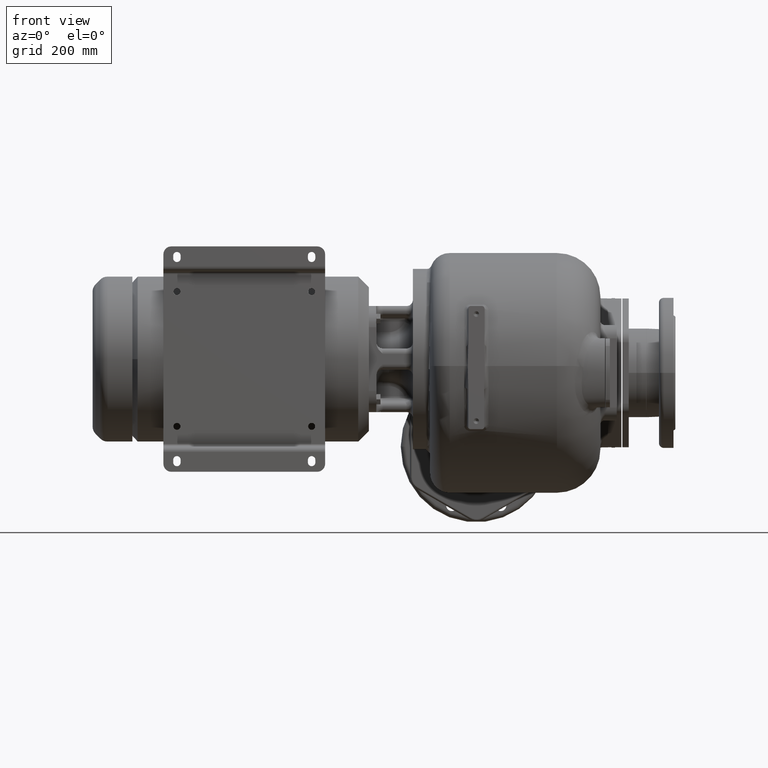
[diagram: clean part render]
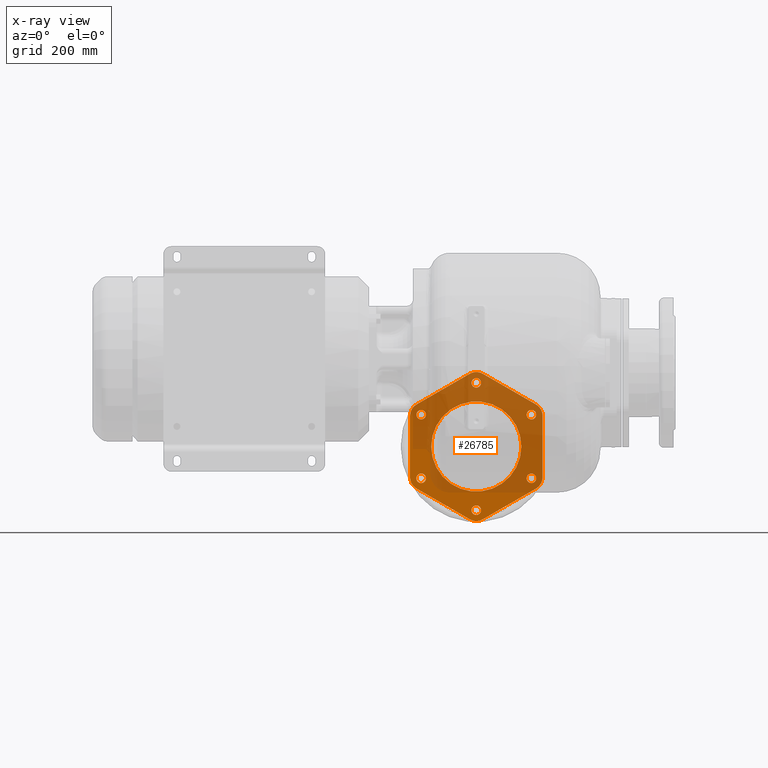
[diagram: x-ray — body ghosted, one internal face saturated and labeled with its STEP entity id]
A machine part, front view, then the same camera in x-ray: the body is ghosted and one INTERNAL B-rep face — a face not visible from any outside direction — is saturated and labeled: STEP entity #26785.
In plain terms, the highlighted planar face has unit normal (0, 1, 0).
Its self-contained STEP definition (entity closure, byte-faithful):
#26180=CARTESIAN_POINT('',(1.E2,5.52E2,-1.072649730810E2));
#26181=DIRECTION('',(0.E0,-1.E0,0.E0));
#26182=DIRECTION('',(1.E0,0.E0,0.E0));
#26183=AXIS2_PLACEMENT_3D('',#26180,#26181,#26182);
#26185=DIRECTION('',(0.E0,0.E0,1.E0));
#26186=VECTOR('',#26185,1.154700538379E2);
#26187=CARTESIAN_POINT('',(1.25E2,5.52E2,-2.227350269190E2));
#26188=LINE('',#26187,#26186);
#26189=CARTESIAN_POINT('',(1.E2,5.52E2,-2.227350269190E2));
#26190=DIRECTION('',(0.E0,-1.E0,0.E0));
#26191=DIRECTION('',(5.E-1,0.E0,-8.660254037844E-1));
#26192=AXIS2_PLACEMENT_3D('',#26189,#26190,#26191);
#26194=DIRECTION('',(8.660254037844E-1,0.E0,5.E-1));
#26195=VECTOR('',#26194,1.154700538379E2);
#26196=CARTESIAN_POINT('',(1.25E1,5.52E2,-3.021206889325E2));
#26197=LINE('',#26196,#26195);
#26198=CARTESIAN_POINT('',(-1.668280801894E-14,5.52E2,-2.804700538379E2));
#26199=DIRECTION('',(0.E0,-1.E0,0.E0));
#26200=DIRECTION('',(-5.E-1,0.E0,-8.660254037844E-1));
#26201=AXIS2_PLACEMENT_3D('',#26198,#26199,#26200);
#26203=DIRECTION('',(8.660254037844E-1,0.E0,-5.E-1));
#26204=VECTOR('',#26203,1.154700538379E2);
#26205=CARTESIAN_POINT('',(-1.125E2,5.52E2,-2.443856620136E2));
#26206=LINE('',#26205,#26204);
#26207=CARTESIAN_POINT('',(-1.E2,5.52E2,-2.227350269190E2));
#26208=DIRECTION('',(0.E0,-1.E0,0.E0));
#26209=DIRECTION('',(-1.E0,0.E0,0.E0));
#26210=AXIS2_PLACEMENT_3D('',#26207,#26208,#26209);
#26212=DIRECTION('',(0.E0,0.E0,-1.E0));
#26213=VECTOR('',#26212,1.154700538379E2);
#26214=CARTESIAN_POINT('',(-1.25E2,5.52E2,-1.072649730810E2));
#26215=LINE('',#26214,#26213);
#26216=CARTESIAN_POINT('',(-1.E2,5.52E2,-1.072649730810E2));
#26217=DIRECTION('',(0.E0,-1.E0,0.E0));
#26218=DIRECTION('',(-5.E-1,0.E0,8.660254037844E-1));
#26219=AXIS2_PLACEMENT_3D('',#26216,#26217,#26218);
#26221=DIRECTION('',(-8.660254037844E-1,0.E0,-5.E-1));
#26222=VECTOR('',#26221,1.154700538379E2);
#26223=CARTESIAN_POINT('',(-1.25E1,5.52E2,-2.787931106746E1));
#26224=LINE('',#26223,#26222);
#26225=CARTESIAN_POINT('',(1.055959402332E-14,5.52E2,-4.952994616208E1));
#26226=DIRECTION('',(0.E0,-1.E0,0.E0));
#26227=DIRECTION('',(5.E-1,0.E0,8.660254037844E-1));
#26228=AXIS2_PLACEMENT_3D('',#26225,#26226,#26227);
#26230=DIRECTION('',(-8.660254037844E-1,0.E0,5.E-1));
#26231=VECTOR('',#26230,1.154700538379E2);
#26232=CARTESIAN_POINT('',(1.125E2,5.52E2,-8.561433798643E1));
#26233=LINE('',#26232,#26231);
#26234=CARTESIAN_POINT('',(-1.039230484541E2,5.52E2,-2.25E2));
#26235=DIRECTION('',(0.E0,1.E0,0.E0));
#26236=DIRECTION('',(0.E0,0.E0,1.E0));
#26237=AXIS2_PLACEMENT_3D('',#26234,#26235,#26236);
#26239=CARTESIAN_POINT('',(-1.039230484541E2,5.52E2,-2.25E2));
#26240=DIRECTION('',(0.E0,1.E0,0.E0));
#26241=DIRECTION('',(0.E0,0.E0,-1.E0));
#26242=AXIS2_PLACEMENT_3D('',#26239,#26240,#26241);
#26244=CARTESIAN_POINT('',(-3.148331336660E-14,5.52E2,-2.85E2));
#26245=DIRECTION('',(0.E0,1.E0,0.E0));
#26246=DIRECTION('',(-8.660254037844E-1,0.E0,5.E-1));
#26247=AXIS2_PLACEMENT_3D('',#26244,#26245,#26246);
#26249=CARTESIAN_POINT('',(-3.148331336660E-14,5.52E2,-2.85E2));
#26250=DIRECTION('',(0.E0,1.E0,0.E0));
#26251=DIRECTION('',(8.660254037844E-1,0.E0,-5.E-1));
#26252=AXIS2_PLACEMENT_3D('',#26249,#26250,#26251);
#26254=CARTESIAN_POINT('',(1.039230484541E2,5.52E2,-2.25E2));
#26255=DIRECTION('',(0.E0,1.E0,0.E0));
#26256=DIRECTION('',(-8.660254037844E-1,0.E0,-5.E-1));
#26257=AXIS2_PLACEMENT_3D('',#26254,#26255,#26256);
#26259=CARTESIAN_POINT('',(1.039230484541E2,5.52E2,-2.25E2));
#26260=DIRECTION('',(0.E0,1.E0,0.E0));
#26261=DIRECTION('',(8.660254037844E-1,0.E0,5.E-1));
#26262=AXIS2_PLACEMENT_3D('',#26259,#26260,#26261);
#26264=CARTESIAN_POINT('',(1.039230484541E2,5.52E2,-1.05E2));
#26265=DIRECTION('',(0.E0,1.E0,0.E0));
#26266=DIRECTION('',(0.E0,0.E0,-1.E0));
#26267=AXIS2_PLACEMENT_3D('',#26264,#26265,#26266);
#26269=CARTESIAN_POINT('',(1.039230484541E2,5.52E2,-1.05E2));
#26270=DIRECTION('',(0.E0,1.E0,0.E0));
#26271=DIRECTION('',(0.E0,0.E0,1.E0));
#26272=AXIS2_PLACEMENT_3D('',#26269,#26270,#26271);
#26274=CARTESIAN_POINT('',(6.799267576305E-14,5.52E2,-4.5E1));
#26275=DIRECTION('',(0.E0,1.E0,0.E0));
#26276=DIRECTION('',(8.660254037844E-1,0.E0,-5.E-1));
#26277=AXIS2_PLACEMENT_3D('',#26274,#26275,#26276);
#26279=CARTESIAN_POINT('',(6.799267576305E-14,5.52E2,-4.5E1));
#26280=DIRECTION('',(0.E0,1.E0,0.E0));
#26281=DIRECTION('',(-8.660254037844E-1,0.E0,5.E-1));
#26282=AXIS2_PLACEMENT_3D('',#26279,#26280,#26281);
#26284=CARTESIAN_POINT('',(-1.039230484541E2,5.52E2,-1.05E2));
#26285=DIRECTION('',(0.E0,1.E0,0.E0));
#26286=DIRECTION('',(8.660254037844E-1,0.E0,5.E-1));
#26287=AXIS2_PLACEMENT_3D('',#26284,#26285,#26286);
#26289=CARTESIAN_POINT('',(-1.039230484541E2,5.52E2,-1.05E2));
#26290=DIRECTION('',(0.E0,1.E0,0.E0));
#26291=DIRECTION('',(-8.660254037844E-1,0.E0,-5.E-1));
#26292=AXIS2_PLACEMENT_3D('',#26289,#26290,#26291);
#26294=CARTESIAN_POINT('',(0.E0,5.52E2,-1.65E2));
#26295=DIRECTION('',(0.E0,-1.E0,0.E0));
#26296=DIRECTION('',(1.E0,0.E0,0.E0));
#26297=AXIS2_PLACEMENT_3D('',#26294,#26295,#26296);
#26299=CARTESIAN_POINT('',(0.E0,5.52E2,-1.65E2));
#26300=DIRECTION('',(0.E0,-1.E0,0.E0));
#26301=DIRECTION('',(-1.E0,0.E0,0.E0));
#26302=AXIS2_PLACEMENT_3D('',#26299,#26300,#26301);
#26356=CARTESIAN_POINT('',(1.25E2,5.52E2,-1.072649730810E2));
#26357=VERTEX_POINT('',#26356);
#26358=CARTESIAN_POINT('',(1.125E2,5.52E2,-8.561433798643E1));
#26359=VERTEX_POINT('',#26358);
#26364=CARTESIAN_POINT('',(1.25E1,5.52E2,-2.787931106746E1));
#26365=VERTEX_POINT('',#26364);
#26366=CARTESIAN_POINT('',(-1.25E1,5.52E2,-2.787931106746E1));
#26367=VERTEX_POINT('',#26366);
#26372=CARTESIAN_POINT('',(-1.125E2,5.52E2,-8.561433798643E1));
#26373=VERTEX_POINT('',#26372);
#26374=CARTESIAN_POINT('',(-1.25E2,5.52E2,-1.072649730810E2));
#26375=VERTEX_POINT('',#26374);
#26380=CARTESIAN_POINT('',(-1.25E2,5.52E2,-2.227350269190E2));
#26381=VERTEX_POINT('',#26380);
#26382=CARTESIAN_POINT('',(-1.125E2,5.52E2,-2.443856620136E2));
#26383=VERTEX_POINT('',#26382);
#26388=CARTESIAN_POINT('',(-1.25E1,5.52E2,-3.021206889325E2));
#26389=VERTEX_POINT('',#26388);
#26390=CARTESIAN_POINT('',(1.25E1,5.52E2,-3.021206889325E2));
#26391=VERTEX_POINT('',#26390);
#26396=CARTESIAN_POINT('',(1.125E2,5.52E2,-2.443856620136E2));
#26397=VERTEX_POINT('',#26396);
#26398=CARTESIAN_POINT('',(1.25E2,5.52E2,-2.227350269190E2));
#26399=VERTEX_POINT('',#26398);
#26400=CARTESIAN_POINT('',(-1.039230484541E2,5.52E2,-2.16E2));
#26402=VERTEX_POINT('',#26400);
#26404=CARTESIAN_POINT('',(-1.039230484541E2,5.52E2,-2.34E2));
#26406=VERTEX_POINT('',#26404);
#26408=CARTESIAN_POINT('',(-7.794228634060E0,5.52E2,-2.805E2));
#26410=VERTEX_POINT('',#26408);
#26412=CARTESIAN_POINT('',(7.794228634060E0,5.52E2,-2.895E2));
#26414=VERTEX_POINT('',#26412);
#26416=CARTESIAN_POINT('',(9.612881982007E1,5.52E2,-2.295E2));
#26418=VERTEX_POINT('',#26416);
#26420=CARTESIAN_POINT('',(1.117172770882E2,5.52E2,-2.205E2));
#26422=VERTEX_POINT('',#26420);
#26424=CARTESIAN_POINT('',(1.039230484541E2,5.52E2,-1.14E2));
#26426=VERTEX_POINT('',#26424);
#26428=CARTESIAN_POINT('',(1.039230484541E2,5.52E2,-9.6E1));
#26430=VERTEX_POINT('',#26428);
#26432=CARTESIAN_POINT('',(7.794228634060E0,5.52E2,-4.95E1));
#26434=VERTEX_POINT('',#26432);
#26436=CARTESIAN_POINT('',(-7.794228634060E0,5.52E2,-4.05E1));
#26438=VERTEX_POINT('',#26436);
#26440=CARTESIAN_POINT('',(-9.612881982007E1,5.52E2,-1.005E2));
#26442=VERTEX_POINT('',#26440);
#26444=CARTESIAN_POINT('',(-1.117172770882E2,5.52E2,-1.095E2));
#26446=VERTEX_POINT('',#26444);
#26448=CARTESIAN_POINT('',(8.5E1,5.52E2,-1.65E2));
#26449=CARTESIAN_POINT('',(-8.5E1,5.52E2,-1.65E2));
#26450=VERTEX_POINT('',#26448);
#26451=VERTEX_POINT('',#26449);
#26726=CARTESIAN_POINT('',(0.E0,5.52E2,-1.65E2));
#26727=DIRECTION('',(0.E0,1.E0,0.E0));
#26728=DIRECTION('',(0.E0,0.E0,-1.E0));
#26729=AXIS2_PLACEMENT_3D('',#26726,#26727,#26728);
#26730=PLANE('',#26729);
#26731=ORIENTED_EDGE('',*,*,#26566,.F.);
#26732=ORIENTED_EDGE('',*,*,#26582,.F.);
#26733=ORIENTED_EDGE('',*,*,#26595,.F.);
#26734=ORIENTED_EDGE('',*,*,#26608,.F.);
#26735=ORIENTED_EDGE('',*,*,#26623,.F.);
#26736=ORIENTED_EDGE('',*,*,#26636,.F.);
#26737=ORIENTED_EDGE('',*,*,#26651,.F.);
#26738=ORIENTED_EDGE('',*,*,#26664,.F.);
#26739=ORIENTED_EDGE('',*,*,#26679,.F.);
#26740=ORIENTED_EDGE('',*,*,#26692,.F.);
#26741=ORIENTED_EDGE('',*,*,#26707,.F.);
#26742=ORIENTED_EDGE('',*,*,#26719,.F.);
#26743=EDGE_LOOP('',(#26731,#26732,#26733,#26734,#26735,#26736,#26737,#26738,
#26739,#26740,#26741,#26742));
#26744=FACE_OUTER_BOUND('',#26743,.F.);
#26745=ORIENTED_EDGE('',*,*,#26463,.F.);
#26746=ORIENTED_EDGE('',*,*,#26481,.F.);
#26747=EDGE_LOOP('',(#26745,#26746));
#26748=FACE_BOUND('',#26747,.F.);
#26750=ORIENTED_EDGE('',*,*,#26749,.F.);
#26752=ORIENTED_EDGE('',*,*,#26751,.F.);
#26753=EDGE_LOOP('',(#26750,#26752));
#26754=FACE_BOUND('',#26753,.F.);
#26756=ORIENTED_EDGE('',*,*,#26755,.F.);
#26758=ORIENTED_EDGE('',*,*,#26757,.F.);
#26759=EDGE_LOOP('',(#26756,#26758));
#26760=FACE_BOUND('',#26759,.F.);
#26762=ORIENTED_EDGE('',*,*,#26761,.F.);
#26764=ORIENTED_EDGE('',*,*,#26763,.F.);
#26765=EDGE_LOOP('',(#26762,#26764));
#26766=FACE_BOUND('',#26765,.F.);
#26768=ORIENTED_EDGE('',*,*,#26767,.F.);
#26770=ORIENTED_EDGE('',*,*,#26769,.F.);
#26771=EDGE_LOOP('',(#26768,#26770));
#26772=FACE_BOUND('',#26771,.F.);
#26774=ORIENTED_EDGE('',*,*,#26773,.F.);
#26776=ORIENTED_EDGE('',*,*,#26775,.F.);
#26777=EDGE_LOOP('',(#26774,#26776));
#26778=FACE_BOUND('',#26777,.F.);
#26780=ORIENTED_EDGE('',*,*,#26779,.T.);
#26782=ORIENTED_EDGE('',*,*,#26781,.T.);
#26783=EDGE_LOOP('',(#26780,#26782));
#26784=FACE_BOUND('',#26783,.F.);
#26785=ADVANCED_FACE('',(#26744,#26748,#26754,#26760,#26766,#26772,#26778,
#26784),#26730,.F.);
#26184=CIRCLE('',#26183,2.5E1);
#26193=CIRCLE('',#26192,2.5E1);
#26202=CIRCLE('',#26201,2.5E1);
#26211=CIRCLE('',#26210,2.5E1);
#26220=CIRCLE('',#26219,2.5E1);
#26229=CIRCLE('',#26228,2.5E1);
#26238=CIRCLE('',#26237,9.E0);
#26243=CIRCLE('',#26242,9.E0);
#26248=CIRCLE('',#26247,9.E0);
#26253=CIRCLE('',#26252,9.E0);
#26258=CIRCLE('',#26257,9.E0);
#26263=CIRCLE('',#26262,9.E0);
#26268=CIRCLE('',#26267,9.E0);
#26273=CIRCLE('',#26272,9.E0);
#26278=CIRCLE('',#26277,9.E0);
#26283=CIRCLE('',#26282,9.E0);
#26288=CIRCLE('',#26287,9.E0);
#26293=CIRCLE('',#26292,9.E0);
#26298=CIRCLE('',#26297,8.5E1);
#26303=CIRCLE('',#26302,8.5E1);
#26463=EDGE_CURVE('',#26402,#26406,#26238,.T.);
#26481=EDGE_CURVE('',#26406,#26402,#26243,.T.);
#26566=EDGE_CURVE('',#26357,#26359,#26184,.T.);
#26582=EDGE_CURVE('',#26399,#26357,#26188,.T.);
#26595=EDGE_CURVE('',#26397,#26399,#26193,.T.);
#26608=EDGE_CURVE('',#26391,#26397,#26197,.T.);
#26623=EDGE_CURVE('',#26389,#26391,#26202,.T.);
#26636=EDGE_CURVE('',#26383,#26389,#26206,.T.);
#26651=EDGE_CURVE('',#26381,#26383,#26211,.T.);
#26664=EDGE_CURVE('',#26375,#26381,#26215,.T.);
#26679=EDGE_CURVE('',#26373,#26375,#26220,.T.);
#26692=EDGE_CURVE('',#26367,#26373,#26224,.T.);
#26707=EDGE_CURVE('',#26365,#26367,#26229,.T.);
#26719=EDGE_CURVE('',#26359,#26365,#26233,.T.);
#26749=EDGE_CURVE('',#26410,#26414,#26248,.T.);
#26751=EDGE_CURVE('',#26414,#26410,#26253,.T.);
#26755=EDGE_CURVE('',#26418,#26422,#26258,.T.);
#26757=EDGE_CURVE('',#26422,#26418,#26263,.T.);
#26761=EDGE_CURVE('',#26426,#26430,#26268,.T.);
#26763=EDGE_CURVE('',#26430,#26426,#26273,.T.);
#26767=EDGE_CURVE('',#26434,#26438,#26278,.T.);
#26769=EDGE_CURVE('',#26438,#26434,#26283,.T.);
#26773=EDGE_CURVE('',#26442,#26446,#26288,.T.);
#26775=EDGE_CURVE('',#26446,#26442,#26293,.T.);
#26779=EDGE_CURVE('',#26450,#26451,#26298,.T.);
#26781=EDGE_CURVE('',#26451,#26450,#26303,.T.);